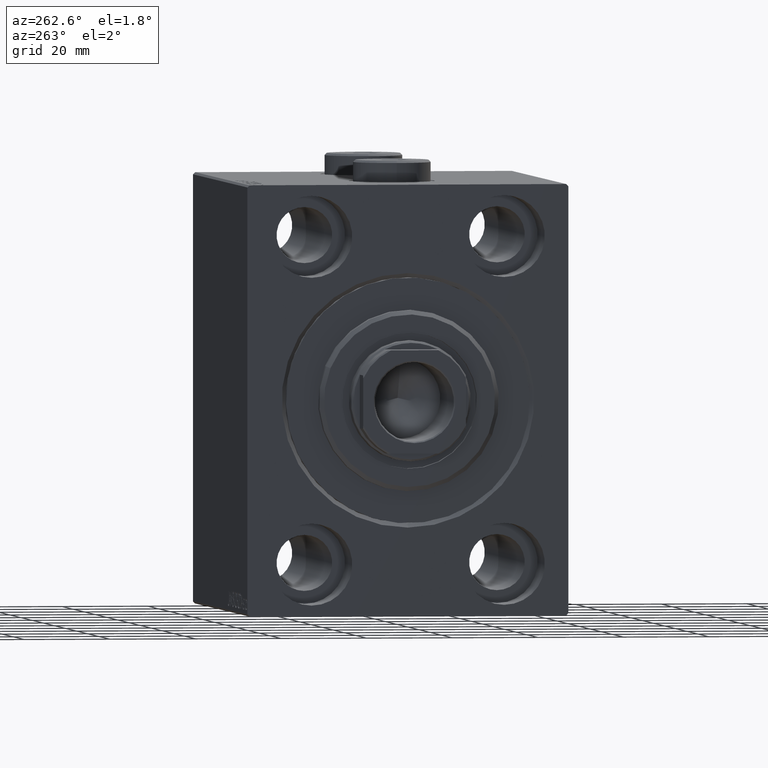
[diagram: clean part render]
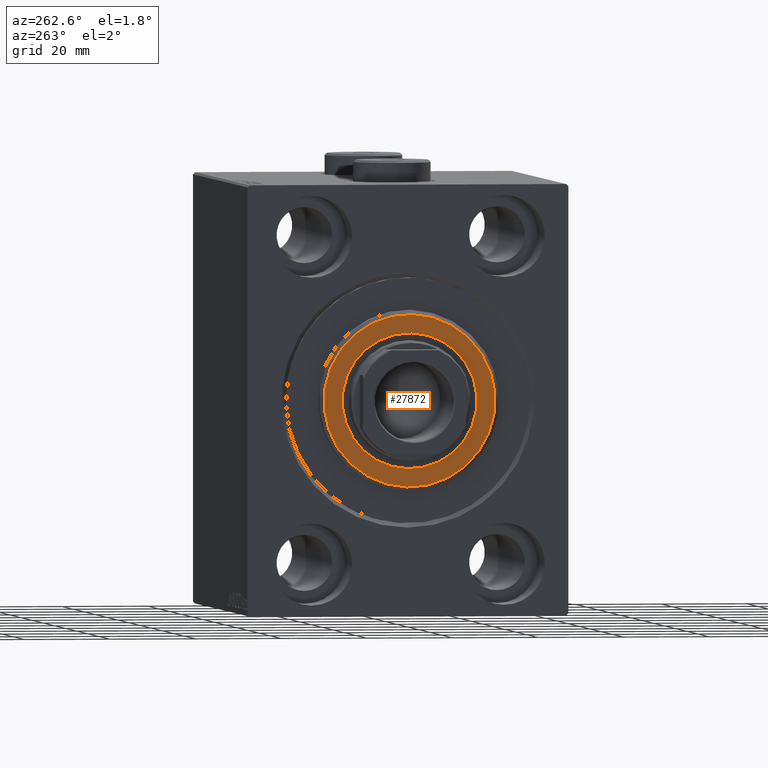
[diagram: same view with one face highlighted and labeled with its STEP entity id]
A machine part, auxiliary view. The second image highlights one B-rep face of the part: STEP entity #27872.
In plain terms, the highlighted planar face has unit normal (-1, 0, 0).
Its self-contained STEP definition (entity closure, byte-faithful):
#696 = CARTESIAN_POINT ( 'NONE',  ( 3.000000000000000000, 0.000000000000000000, 0.000000000000000000 ) ) ;
#1030 = CARTESIAN_POINT ( 'NONE',  ( 3.000000000000000000, 0.000000000000000000, 0.000000000000000000 ) ) ;
#2910 = ORIENTED_EDGE ( 'NONE', *, *, #15040, .T. ) ;
#4083 = DIRECTION ( 'NONE',  ( -1.000000000000000000, 0.000000000000000000, -0.000000000000000000 ) ) ;
#4306 = CARTESIAN_POINT ( 'NONE',  ( 3.000000000000000000, 0.000000000000000000, 0.000000000000000000 ) ) ;
#5903 = VERTEX_POINT ( 'NONE', #43103 ) ;
#6120 = EDGE_LOOP ( 'NONE', ( #31828, #32720 ) ) ;
#8469 = DIRECTION ( 'NONE',  ( 0.000000000000000000, 0.000000000000000000, -1.000000000000000000 ) ) ;
#9258 = DIRECTION ( 'NONE',  ( 0.000000000000000000, 0.000000000000000000, -1.000000000000000000 ) ) ;
#9704 = DIRECTION ( 'NONE',  ( 1.000000000000000000, -0.000000000000000000, 0.000000000000000000 ) ) ;
#10174 = VERTEX_POINT ( 'NONE', #19803 ) ;
#10317 = CARTESIAN_POINT ( 'NONE',  ( 3.000000000000000000, 0.000000000000000000, 19.99999999999999645 ) ) ;
#12204 = VERTEX_POINT ( 'NONE', #10317 ) ;
#12334 = ORIENTED_EDGE ( 'NONE', *, *, #34421, .T. ) ;
#12443 = AXIS2_PLACEMENT_3D ( 'NONE', #1030, #21672, #25560 ) ;
#12856 = AXIS2_PLACEMENT_3D ( 'NONE', #4306, #4083, #45364 ) ;
#13053 = CARTESIAN_POINT ( 'NONE',  ( 3.000000000000000000, 0.000000000000000000, 15.75000000000000000 ) ) ;
#13843 = AXIS2_PLACEMENT_3D ( 'NONE', #43105, #30036, #8469 ) ;
#15040 = EDGE_CURVE ( 'NONE', #10174, #21310, #32606, .T. ) ;
#19737 = AXIS2_PLACEMENT_3D ( 'NONE', #20515, #9704, #9258 ) ;
#19803 = CARTESIAN_POINT ( 'NONE',  ( 3.000000000000000000, 1.928818708657080950E-15, -15.75000000000000000 ) ) ;
#20054 = PLANE ( 'NONE',  #19737 ) ;
#20515 = CARTESIAN_POINT ( 'NONE',  ( 3.000000000000000000, 0.000000000000000000, 0.000000000000000000 ) ) ;
#21113 = DIRECTION ( 'NONE',  ( -1.000000000000000000, 0.000000000000000000, -0.000000000000000000 ) ) ;
#21175 = CIRCLE ( 'NONE', #13843, 19.99999999999999645 ) ;
#21310 = VERTEX_POINT ( 'NONE', #13053 ) ;
#21672 = DIRECTION ( 'NONE',  ( 1.000000000000000000, -0.000000000000000000, 0.000000000000000000 ) ) ;
#23278 = EDGE_CURVE ( 'NONE', #12204, #5903, #21175, .T. ) ;
#23552 = AXIS2_PLACEMENT_3D ( 'NONE', #696, #21113, #39419 ) ;
#25560 = DIRECTION ( 'NONE',  ( 0.000000000000000000, 0.000000000000000000, -1.000000000000000000 ) ) ;
#27872 = ADVANCED_FACE ( 'NONE', ( #31038, #33789 ), #20054, .T. ) ;
#30035 = EDGE_LOOP ( 'NONE', ( #12334, #2910 ) ) ;
#30036 = DIRECTION ( 'NONE',  ( 1.000000000000000000, -0.000000000000000000, 0.000000000000000000 ) ) ;
#31038 = FACE_OUTER_BOUND ( 'NONE', #6120, .T. ) ;
#31338 = EDGE_CURVE ( 'NONE', #5903, #12204, #32208, .T. ) ;
#31594 = CIRCLE ( 'NONE', #23552, 15.75000000000000000 ) ;
#31828 = ORIENTED_EDGE ( 'NONE', *, *, #23278, .T. ) ;
#32208 = CIRCLE ( 'NONE', #12443, 19.99999999999999645 ) ;
#32606 = CIRCLE ( 'NONE', #12856, 15.75000000000000000 ) ;
#32720 = ORIENTED_EDGE ( 'NONE', *, *, #31338, .T. ) ;
#33789 = FACE_BOUND ( 'NONE', #30035, .T. ) ;
#34421 = EDGE_CURVE ( 'NONE', #21310, #10174, #31594, .T. ) ;
#39419 = DIRECTION ( 'NONE',  ( 0.000000000000000000, 0.000000000000000000, -1.000000000000000000 ) ) ;
#43103 = CARTESIAN_POINT ( 'NONE',  ( 3.000000000000000000, 2.510525938252074087E-15, -19.99999999999999645 ) ) ;
#43105 = CARTESIAN_POINT ( 'NONE',  ( 3.000000000000000000, 0.000000000000000000, 0.000000000000000000 ) ) ;
#45364 = DIRECTION ( 'NONE',  ( 0.000000000000000000, 0.000000000000000000, -1.000000000000000000 ) ) ;